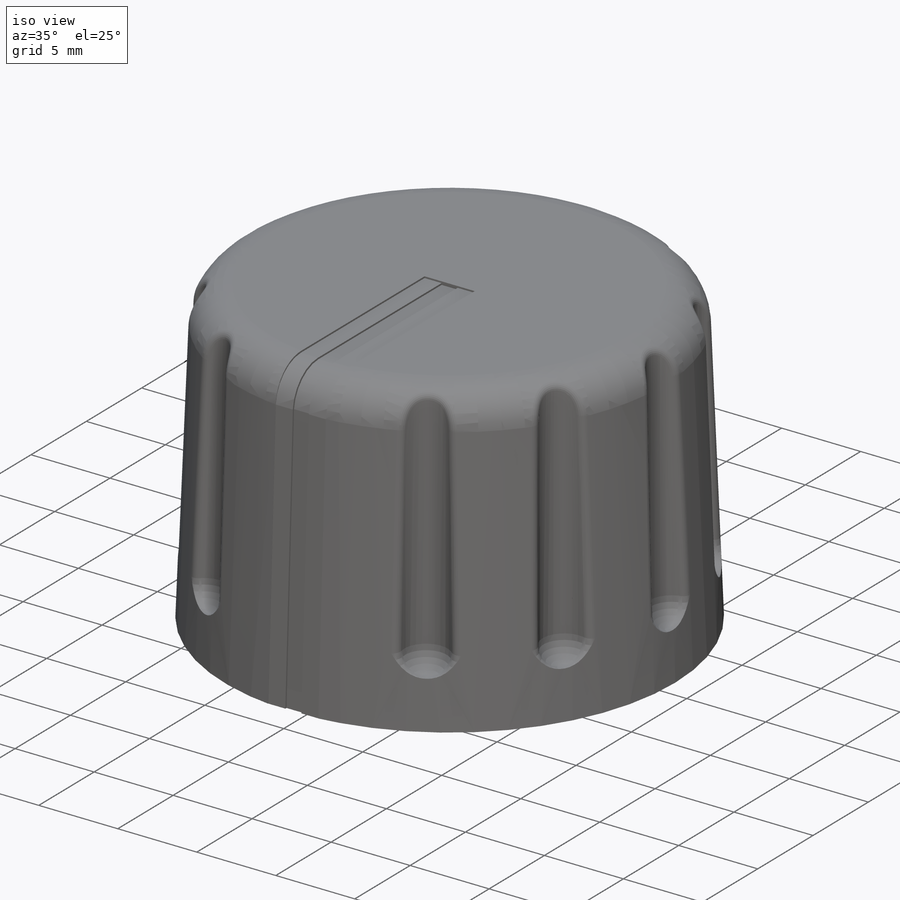
[diagram: iso view]
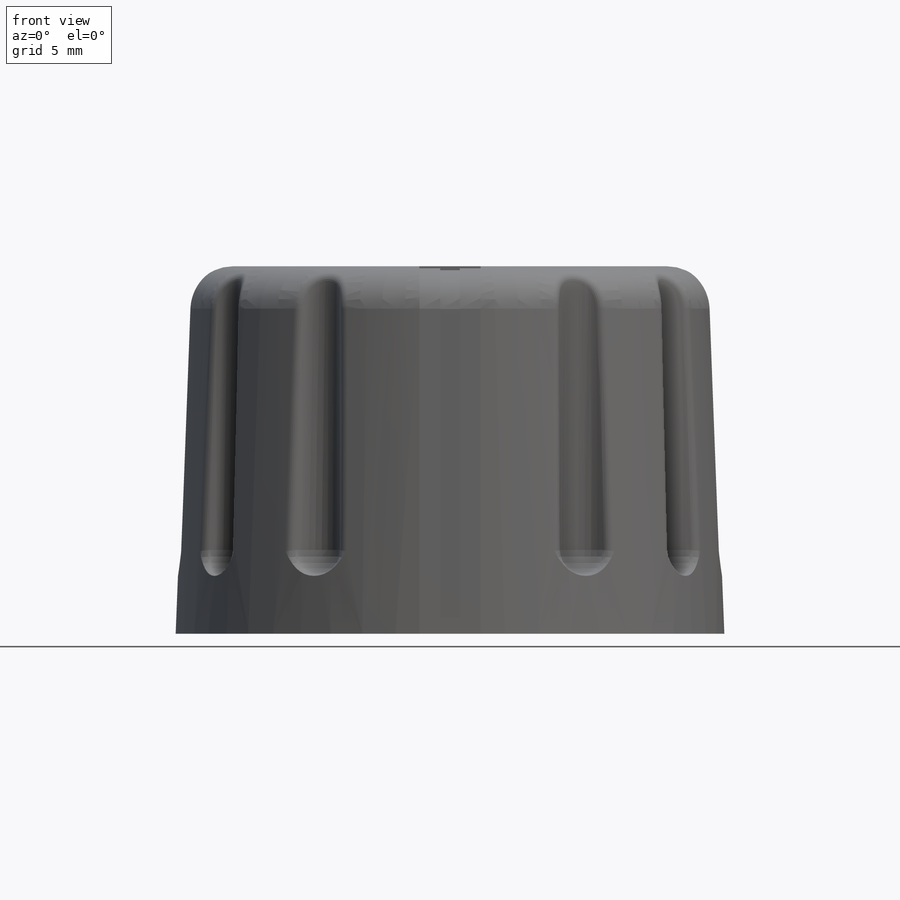
[diagram: front view]
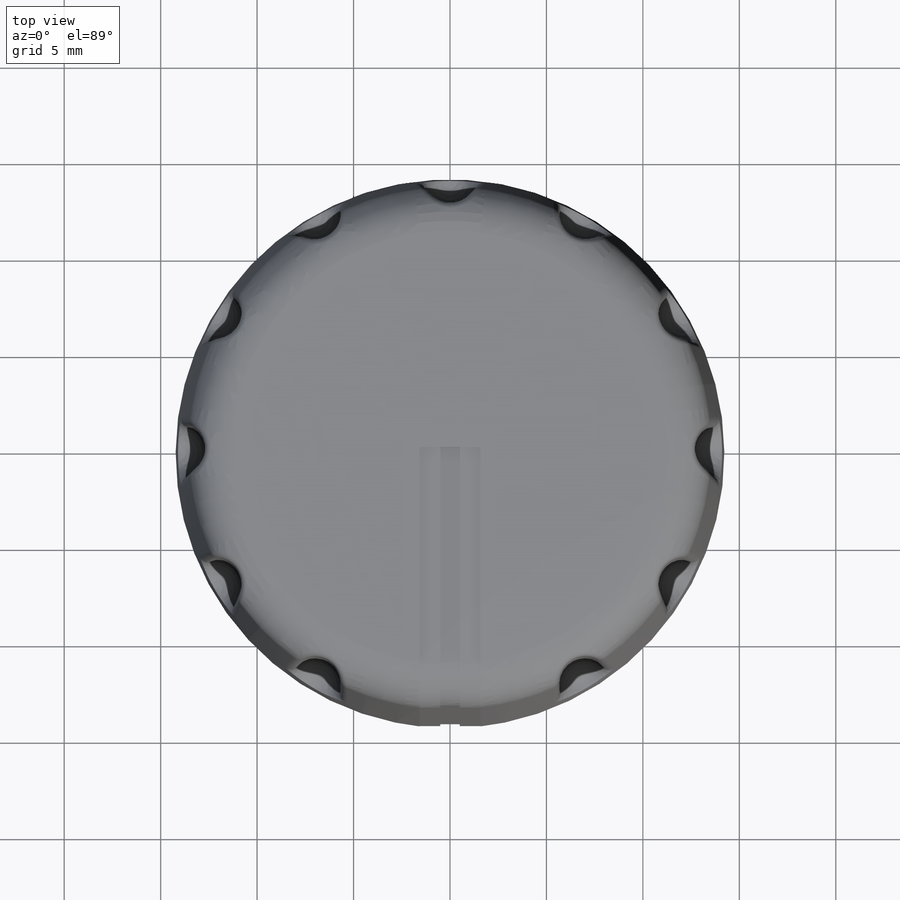
[diagram: top view]
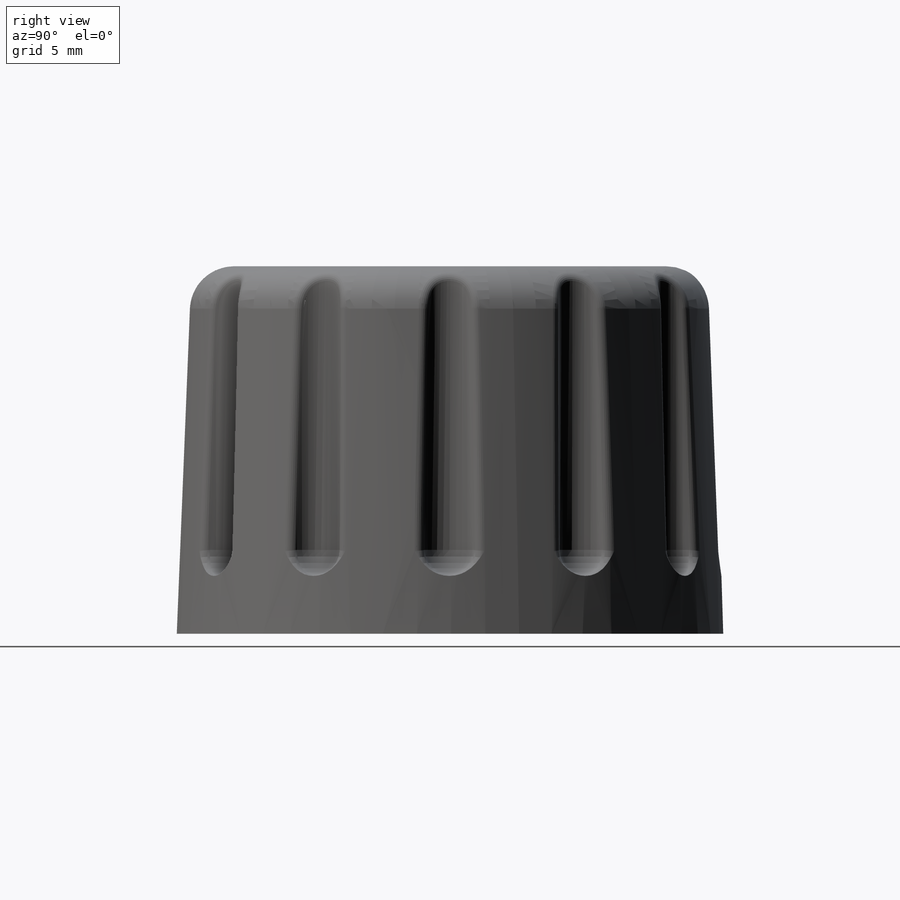
[diagram: right view]
SOLIDWORKS PART (.sldprt)
format: sldprt  version: not decoded by parser v0  size: 871,424 bytes
history: native  units: mm
features: sketch x10, cut_extrude x9, plane x6, pattern_circular x3, material x1, revolve x1, fillet x1 (+8 scaffold rows collapsed)
feature tree (39):
  scaffold x8  (default folders/planes/origin — collapsed)
  material  "PMMA"
  plane  "Přední rovina"
  plane  "Horní rovina"
  plane  "Pravá rovina"
  sketch  "Skica4"  dims[c1.D1=14.224mm c1.D2=9.525mm c2.D2=87.7deg c2.D3=19.05mm]
  revolve  "Rotovat1"  Angle=360deg
  plane  "Rovina3"  Offset=3mm
  sketch  "Skica9"  dims[c1.D2=2.6208mm c1.D3=14.224mm c2.D3=90.0deg c3.D3=14.224mm c4.D3=90.0deg c4.D2=14.224mm c5.D2=30.0deg c5.D1=0.0mm]
  cut_extrude  "Odebrat vysunutím8"  Depth=19.781252mm
  fillet  "Zaoblit5"  Radius=2.286mm
  pattern_circular  "Kruhové pole1"  Count=14 Angle=30deg
  sketch  "Skica11"  dims[D1=16.764mm]
  plane  "Rovina4"  Offset=15mm
  pattern_circular  "Zaoblit6"  [2 undecoded]
  pattern_circular  "Zaoblit7"  [2 undecoded]
  cut_extrude  "Odebrat vysunutím9"  Depth=4.064mm
  sketch  "Skica12"  dims[D1=1.5875mm D2=1.5875mm]
  cut_extrude  "Odebrat vysunutím10"  Depth=0.1mm
  plane  "Rovina5"
  sketch  "Skica13"  dims[D1=1.5875mm D2=1.5875mm]
  cut_extrude  "Odebrat vysunutím11"  Depth=0.1mm
  sketch  "Skica14"
  cut_extrude  "Odebrat vysunutím12"  Depth=3.175mm
  sketch  "Skica15"  dims[D1=0.508mm D2=0.508mm]
  cut_extrude  "Odebrat vysunutím13"  Depth=0.1016mm
  sketch  "Skica16"  dims[D1=0.508mm D2=0.508mm]
  cut_extrude  "Odebrat vysunutím14"  Depth=0.1016mm
  sketch  "Skica17"
  cut_extrude  "Odebrat vysunutím15"  Depth=1.016mm
  sketch  "Skica18"  dims[D1=6.35mm D2=5.4864mm]
  cut_extrude  "Odebrat vysunutím16"  Depth=11.684mm
decode coverage: 20 of 24 modeling features carry decoded parameters
note: 4 parameter values undecoded
note: suppression state not decoded; provenance and decode notes live in map.json
